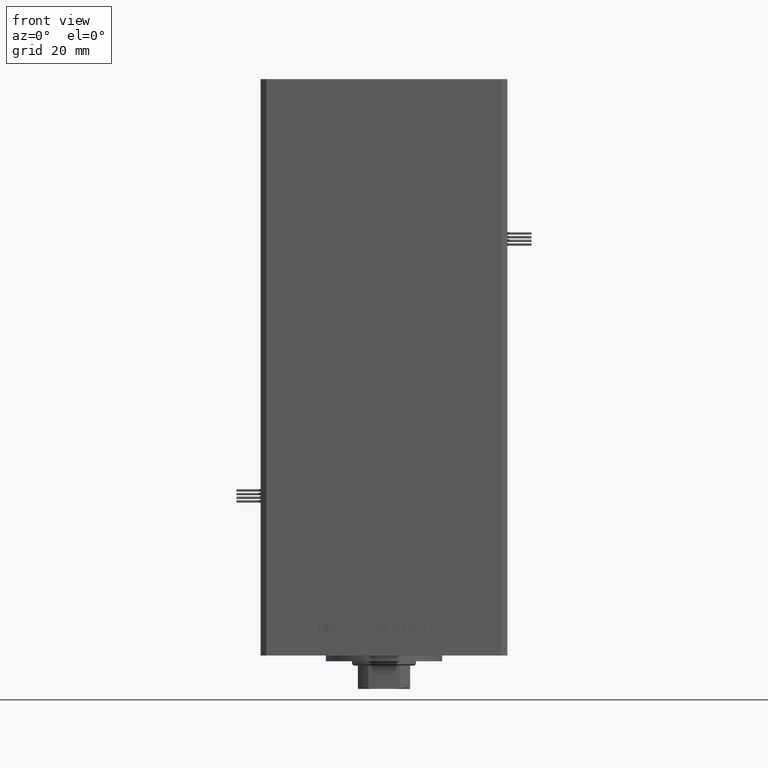
[diagram: clean part render]
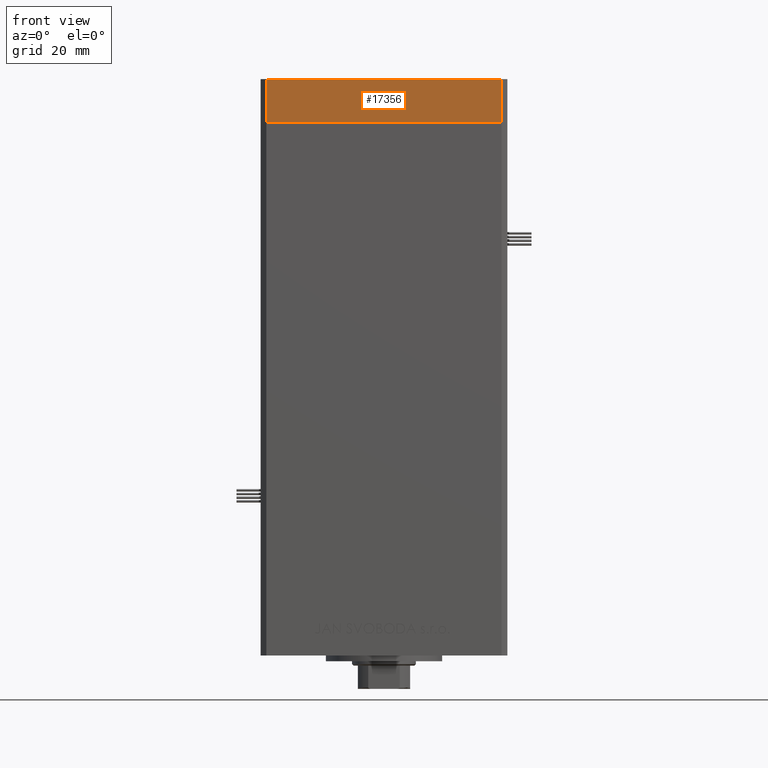
[diagram: same view with one face highlighted and labeled with its STEP entity id]
A machine part, front view. The second image highlights one B-rep face of the part: STEP entity #17356.
In plain terms, the highlighted planar face has unit normal (0, -1, 0).
Its self-contained STEP definition (entity closure, byte-faithful):
#281 = VECTOR ( 'NONE', #2234, 1000.000000000000000 ) ;
#670 = VERTEX_POINT ( 'NONE', #25215 ) ;
#1926 = ORIENTED_EDGE ( 'NONE', *, *, #21541, .F. ) ;
#2234 = DIRECTION ( 'NONE',  ( 0.000000000000000000, 0.000000000000000000, 1.000000000000000000 ) ) ;
#8545 = EDGE_CURVE ( 'NONE', #670, #22609, #43471, .T. ) ;
#8831 = DIRECTION ( 'NONE',  ( 1.000000000000000000, 1.713307136767217096E-16, 0.000000000000000000 ) ) ;
#9023 = CARTESIAN_POINT ( 'NONE',  ( 40.50000000000000000, -37.50000000000000711, 0.000000000000000000 ) ) ;
#13319 = VECTOR ( 'NONE', #48257, 1000.000000000000000 ) ;
#15283 = DIRECTION ( 'NONE',  ( 0.000000000000000000, 0.000000000000000000, 1.000000000000000000 ) ) ;
#16002 = VECTOR ( 'NONE', #8831, 1000.000000000000000 ) ;
#17356 = ADVANCED_FACE ( 'NONE', ( #38515 ), #42989, .T. ) ;
#17564 = VERTEX_POINT ( 'NONE', #24211 ) ;
#18084 = LINE ( 'NONE', #30270, #281 ) ;
#19763 = ORIENTED_EDGE ( 'NONE', *, *, #52098, .F. ) ;
#21541 = EDGE_CURVE ( 'NONE', #670, #17564, #18084, .T. ) ;
#22609 = VERTEX_POINT ( 'NONE', #43013 ) ;
#23726 = VERTEX_POINT ( 'NONE', #9023 ) ;
#24211 = CARTESIAN_POINT ( 'NONE',  ( -40.49999999999999289, -37.50000000000002132, 0.000000000000000000 ) ) ;
#25215 = CARTESIAN_POINT ( 'NONE',  ( -40.49999999999999289, -37.50000000000002132, -15.00000000000000000 ) ) ;
#26060 = EDGE_LOOP ( 'NONE', ( #19763, #1926, #50677, #49101 ) ) ;
#26356 = DIRECTION ( 'NONE',  ( 1.713307136767217096E-16, -1.000000000000000000, 0.000000000000000000 ) ) ;
#27128 = CARTESIAN_POINT ( 'NONE',  ( -40.49999999999999289, -37.50000000000002132, -15.00000000000000000 ) ) ;
#27990 = LINE ( 'NONE', #28518, #34461 ) ;
#28518 = CARTESIAN_POINT ( 'NONE',  ( 40.50000000000000000, -37.50000000000000711, -15.00000000000000000 ) ) ;
#30270 = CARTESIAN_POINT ( 'NONE',  ( -40.49999999999999289, -37.50000000000002132, -15.00000000000000000 ) ) ;
#31091 = DIRECTION ( 'NONE',  ( 1.000000000000000000, 1.713307136767217096E-16, 0.000000000000000000 ) ) ;
#32142 = LINE ( 'NONE', #36622, #13319 ) ;
#34461 = VECTOR ( 'NONE', #15283, 1000.000000000000000 ) ;
#36622 = CARTESIAN_POINT ( 'NONE',  ( -40.49999999999999289, -37.50000000000002132, 0.000000000000000000 ) ) ;
#38515 = FACE_OUTER_BOUND ( 'NONE', #26060, .T. ) ;
#40627 = AXIS2_PLACEMENT_3D ( 'NONE', #27128, #26356, #31091 ) ;
#42989 = PLANE ( 'NONE',  #40627 ) ;
#43013 = CARTESIAN_POINT ( 'NONE',  ( 40.50000000000000000, -37.50000000000000711, -15.00000000000000000 ) ) ;
#43471 = LINE ( 'NONE', #51929, #16002 ) ;
#48257 = DIRECTION ( 'NONE',  ( 1.000000000000000000, 1.713307136767217096E-16, 0.000000000000000000 ) ) ;
#49101 = ORIENTED_EDGE ( 'NONE', *, *, #49479, .T. ) ;
#49479 = EDGE_CURVE ( 'NONE', #22609, #23726, #27990, .T. ) ;
#50677 = ORIENTED_EDGE ( 'NONE', *, *, #8545, .T. ) ;
#51929 = CARTESIAN_POINT ( 'NONE',  ( -40.49999999999999289, -37.50000000000002132, -15.00000000000000000 ) ) ;
#52098 = EDGE_CURVE ( 'NONE', #17564, #23726, #32142, .T. ) ;